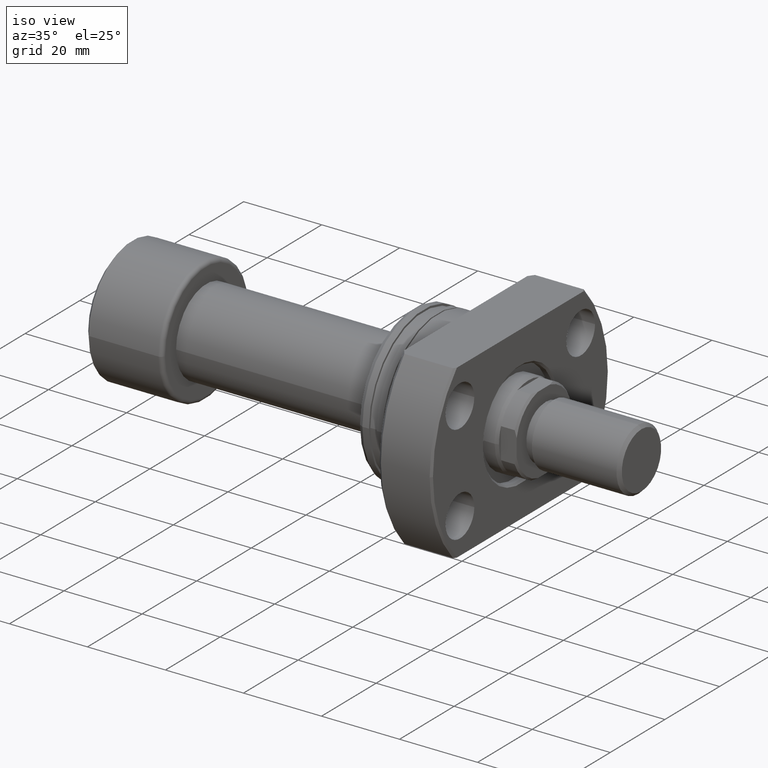
[diagram: clean part render]
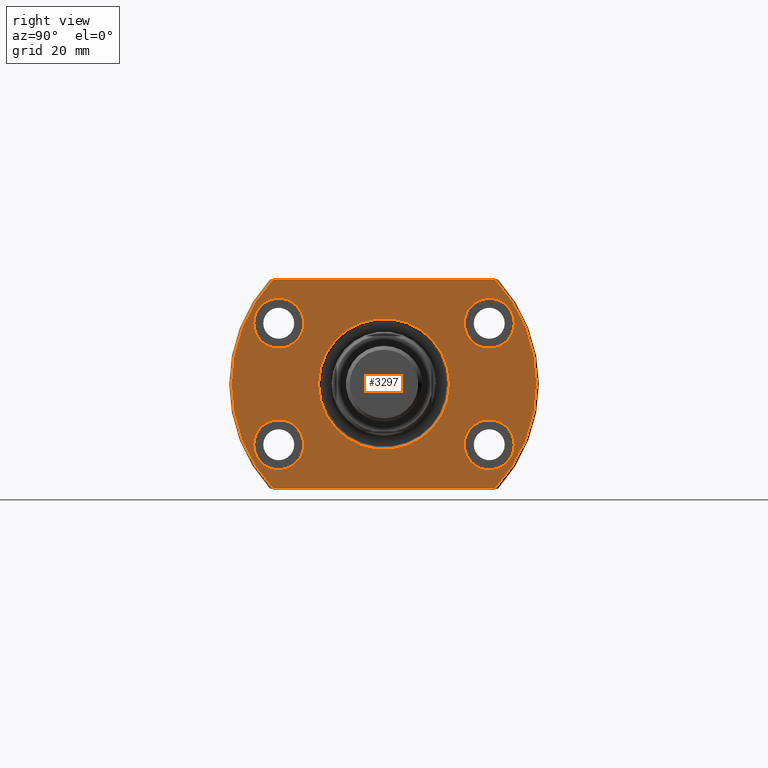
[diagram: tour spotlight — one face highlighted and labeled with its STEP entity id]
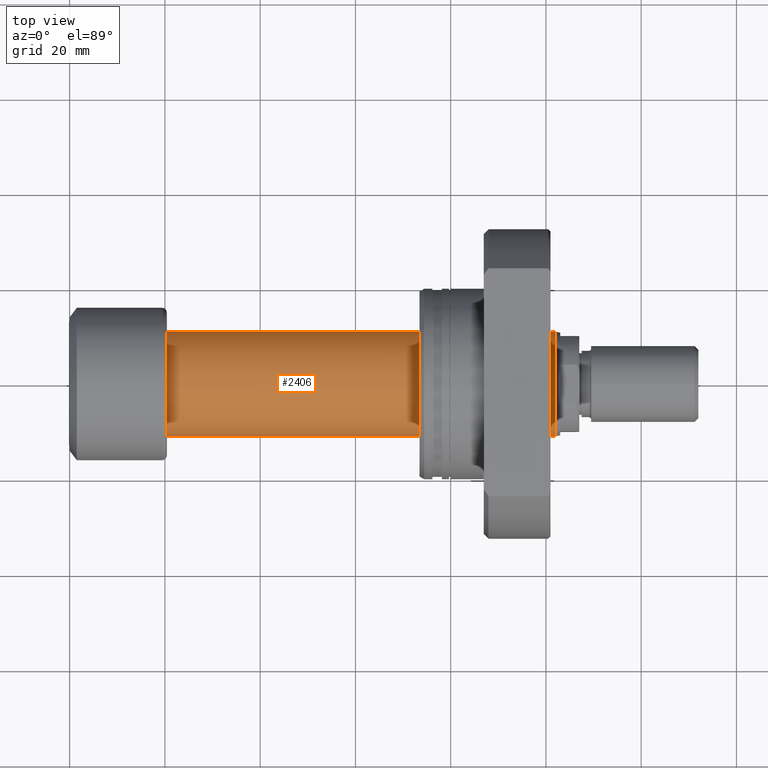
[diagram: tour spotlight — one face highlighted and labeled with its STEP entity id]
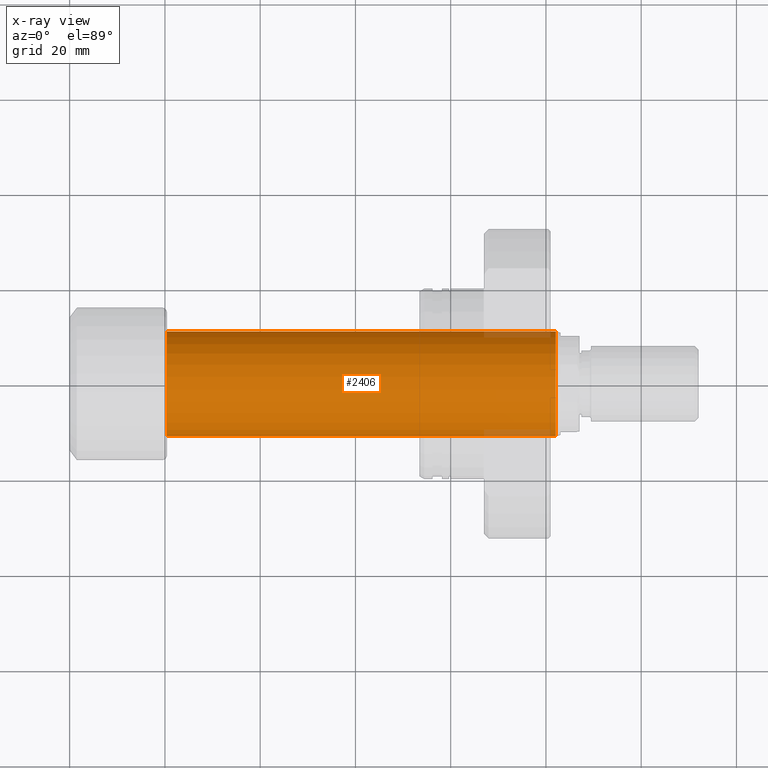
[diagram: x-ray of the same camera — body ghosted, this tour face saturated]
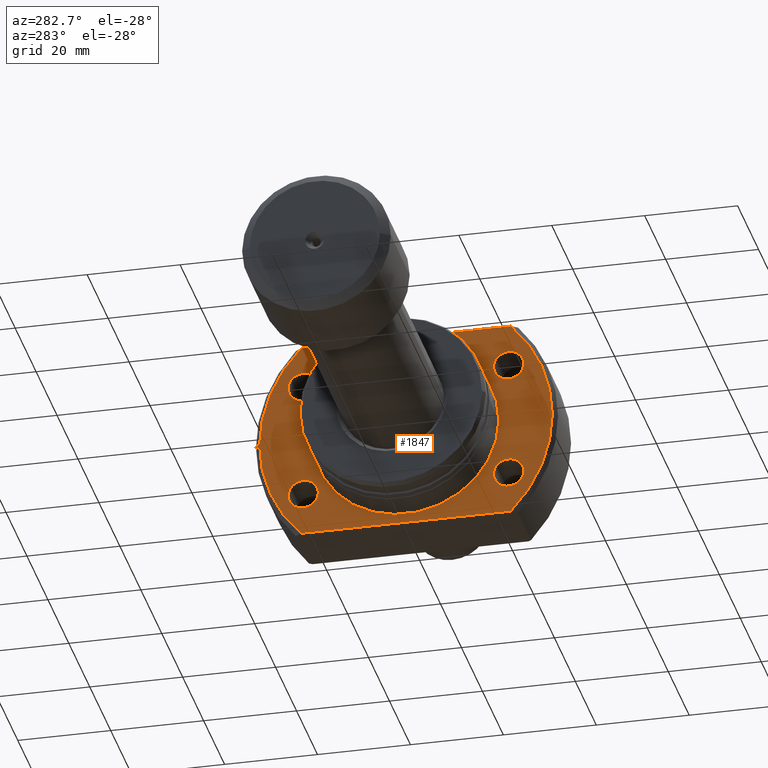
[diagram: tour spotlight — one face highlighted and labeled with its STEP entity id]
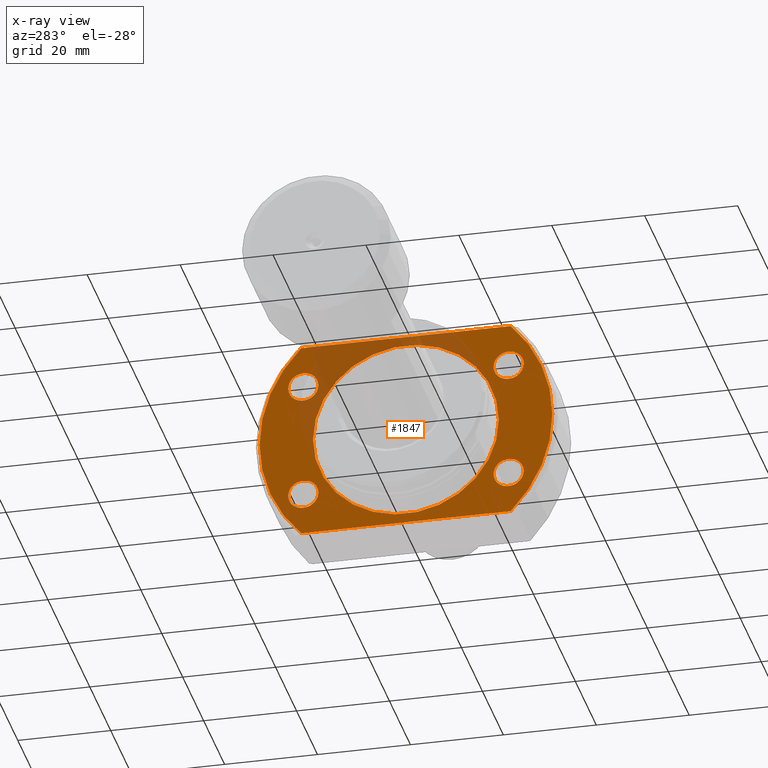
[diagram: x-ray of the same camera — body ghosted, this tour face saturated]
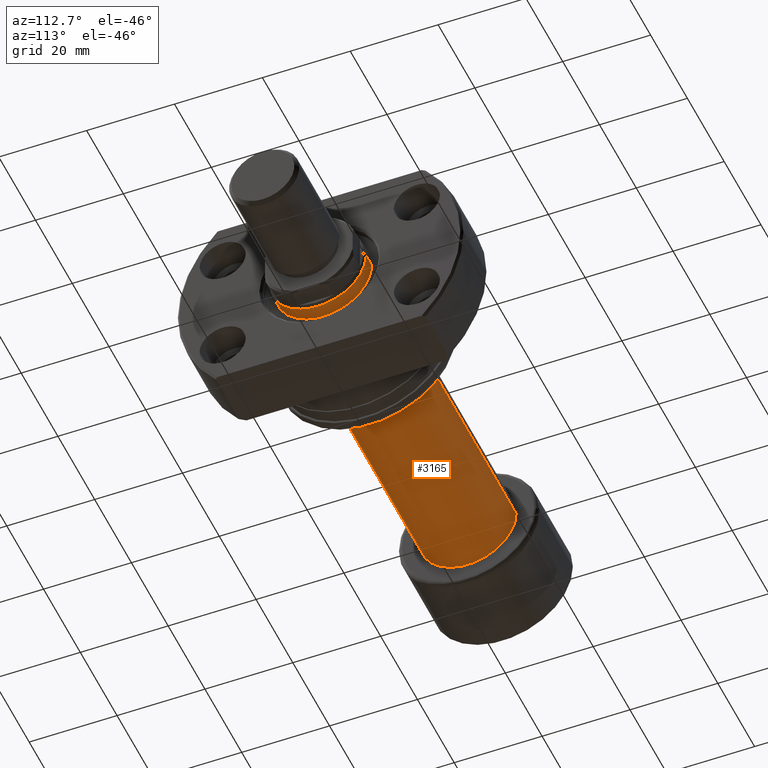
[diagram: tour spotlight — one face highlighted and labeled with its STEP entity id]
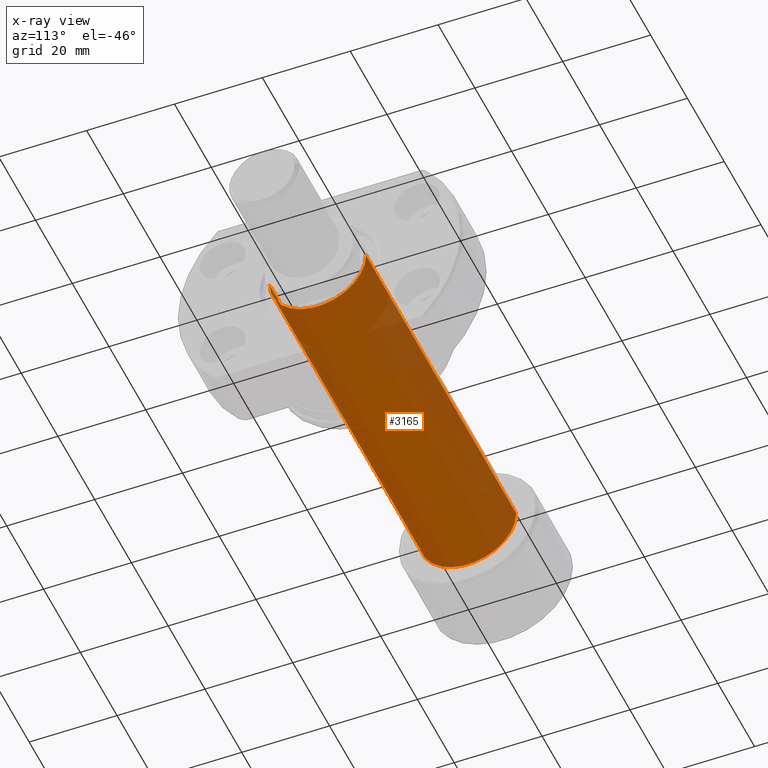
[diagram: x-ray of the same camera — body ghosted, this tour face saturated]
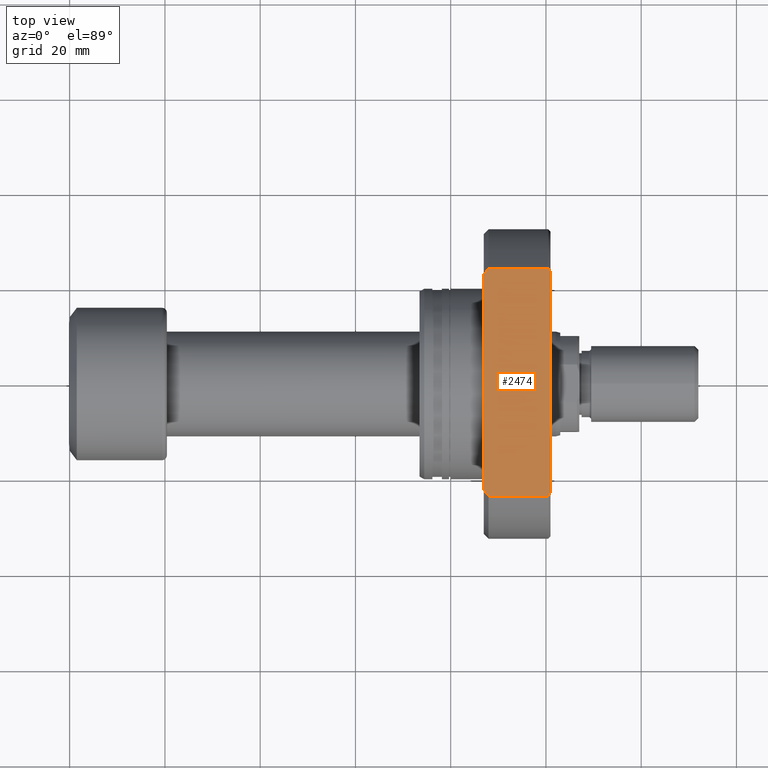
[diagram: tour spotlight — one face highlighted and labeled with its STEP entity id]
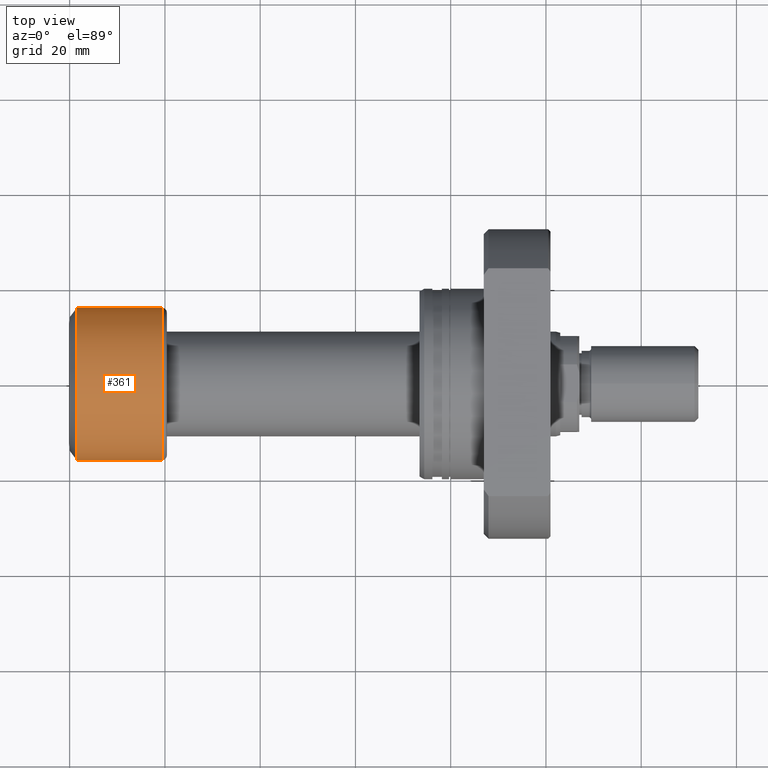
[diagram: tour spotlight — one face highlighted and labeled with its STEP entity id]
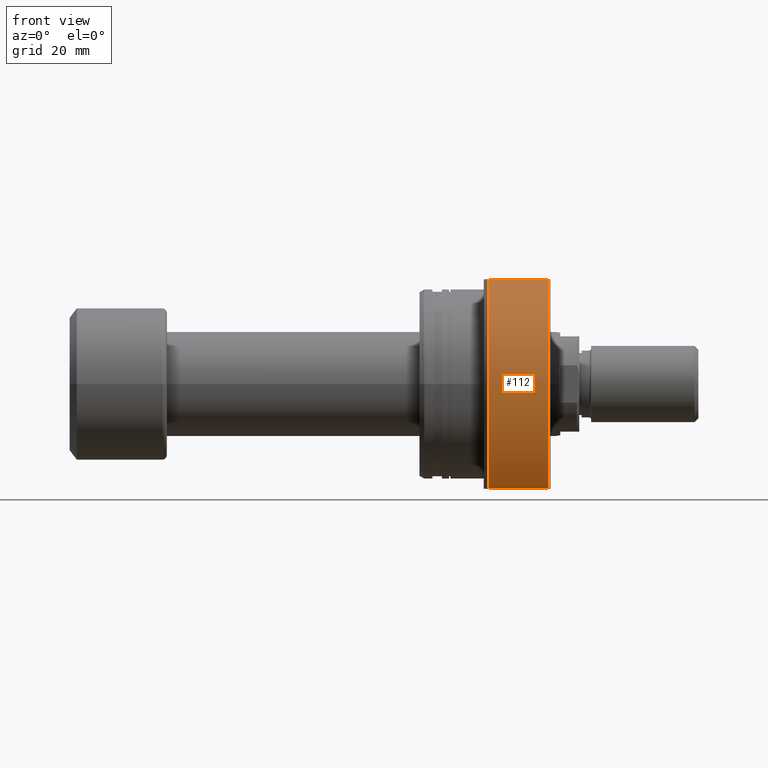
[diagram: tour spotlight — one face highlighted and labeled with its STEP entity id]
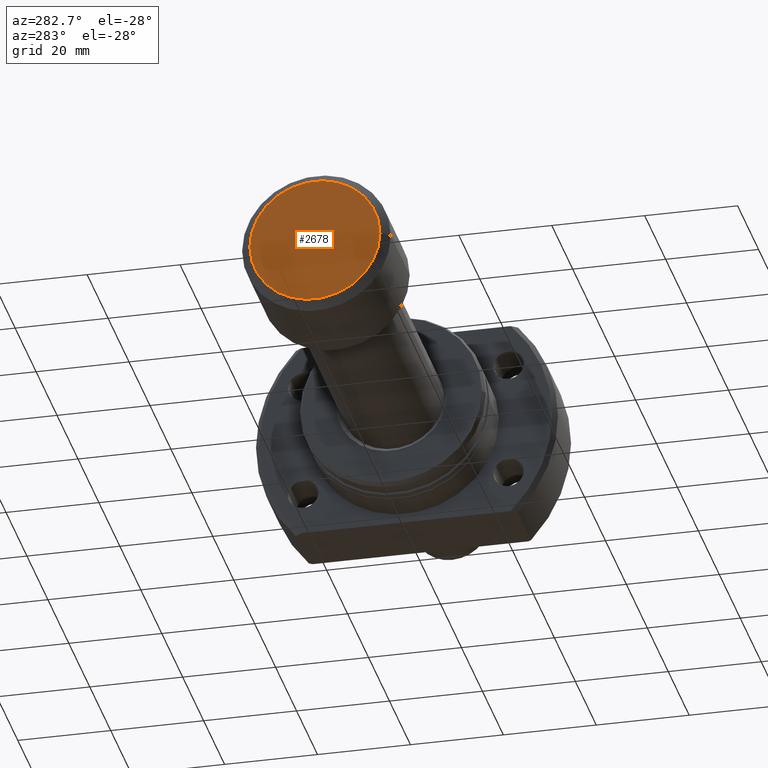
[diagram: tour spotlight — one face highlighted and labeled with its STEP entity id]
A machine part: a face-by-face anatomy tour. The part has 117 B-rep faces; the first image is the clean iso view, then the 8 largest visible faces are spotlighted one at a time (largest first), each with its STEP entity span.

Face 1 — right view, entity #3297. In plain terms, the highlighted planar face has unit normal (-1, -0, 0).
Definition (entity closure, byte-faithful):
#6 = EDGE_CURVE ( 'NONE', #573, #157, #310, .T. ) ;
#28 = CIRCLE ( 'NONE', #2116, 5.250000000000000888 ) ;
#43 = CIRCLE ( 'NONE', #3092, 32.00000000000000000 ) ;
#58 = ORIENTED_EDGE ( 'NONE', *, *, #1616, .F. ) ;
#82 = EDGE_LOOP ( 'NONE', ( #1561, #3218 ) ) ;
#136 = FACE_BOUND ( 'NONE', #82, .T. ) ;
#157 = VERTEX_POINT ( 'NONE', #3033 ) ;
#164 = VERTEX_POINT ( 'NONE', #396 ) ;
#220 = AXIS2_PLACEMENT_3D ( 'NONE', #1685, #1401, #1141 ) ;
#235 = DIRECTION ( 'NONE',  ( -1.000000000000000000, -1.335978326342566810E-17, 0.000000000000000000 ) ) ;
#260 = EDGE_CURVE ( 'NONE', #2886, #164, #3543, .T. ) ;
#289 = VERTEX_POINT ( 'NONE', #1810 ) ;
#300 = CARTESIAN_POINT ( 'NONE',  ( 27.50000000000064304, 22.09999999999920917, 12.74999999999999822 ) ) ;
#310 = LINE ( 'NONE', #1963, #2657 ) ;
#315 = EDGE_LOOP ( 'NONE', ( #3351, #2999 ) ) ;
#327 = AXIS2_PLACEMENT_3D ( 'NONE', #948, #2395, #3535 ) ;
#335 = CARTESIAN_POINT ( 'NONE',  ( 27.49999999999921130, -27.35000000000079368, 12.74999999999999822 ) ) ;
#359 = DIRECTION ( 'NONE',  ( 0.000000000000000000, 1.000000000000000000, 0.000000000000000000 ) ) ;
#396 = CARTESIAN_POINT ( 'NONE',  ( 27.50000000000079581, 27.34999999999921272, 12.74999999999999822 ) ) ;
#442 = CARTESIAN_POINT ( 'NONE',  ( 27.50000000000000355, -32.00000000000000000, 0.000000000000000000 ) ) ;
#480 = VERTEX_POINT ( 'NONE', #1435 ) ;
#513 = DIRECTION ( 'NONE',  ( -1.000000000000000000, -1.335978326342566810E-17, 0.000000000000000000 ) ) ;
#515 = CIRCLE ( 'NONE', #327, 32.00000000000000000 ) ;
#573 = VERTEX_POINT ( 'NONE', #2895 ) ;
#608 = DIRECTION ( 'NONE',  ( 1.000000000000000000, 1.335978326342566810E-17, -0.000000000000000000 ) ) ;
#624 = EDGE_LOOP ( 'NONE', ( #2667, #1424 ) ) ;
#668 = CARTESIAN_POINT ( 'NONE',  ( 27.50000000000049027, 16.84999999999920917, 12.74999999999999822 ) ) ;
#677 = DIRECTION ( 'NONE',  ( -0.000000000000000000, 1.000000000000000000, 0.000000000000000000 ) ) ;
#697 = DIRECTION ( 'NONE',  ( 1.000000000000000000, 1.335978326342566810E-17, -0.000000000000000000 ) ) ;
#918 = DIRECTION ( 'NONE',  ( 0.000000000000000000, 1.000000000000000000, 0.000000000000000000 ) ) ;
#927 = EDGE_CURVE ( 'NONE', #1628, #480, #2287, .T. ) ;
#934 = CIRCLE ( 'NONE', #2122, 13.74999999999920774 ) ;
#948 = CARTESIAN_POINT ( 'NONE',  ( 27.50000000000000355, 3.673940397442059375E-16, 0.000000000000000000 ) ) ;
#974 = FACE_BOUND ( 'NONE', #315, .T. ) ;
#993 = DIRECTION ( 'NONE',  ( 1.000000000000000000, -2.886466111666351885E-14, 0.000000000000000000 ) ) ;
#1040 = DIRECTION ( 'NONE',  ( 2.907726969256361977E-14, 1.000000000000000000, 0.000000000000000000 ) ) ;
#1136 = DIRECTION ( 'NONE',  ( -1.335978326342566810E-17, 1.000000000000000000, -0.000000000000000000 ) ) ;
#1141 = DIRECTION ( 'NONE',  ( 2.907726969256361977E-14, 1.000000000000000000, 0.000000000000000000 ) ) ;
#1178 = EDGE_CURVE ( 'NONE', #2060, #573, #515, .T. ) ;
#1200 = FACE_OUTER_BOUND ( 'NONE', #1709, .T. ) ;
#1257 = FACE_BOUND ( 'NONE', #2947, .T. ) ;
#1273 = PLANE ( 'NONE',  #1830 ) ;
#1281 = CIRCLE ( 'NONE', #2898, 5.250000000000000888 ) ;
#1297 = EDGE_CURVE ( 'NONE', #1923, #2024, #934, .T. ) ;
#1392 = CARTESIAN_POINT ( 'NONE',  ( 27.50000000000064304, 22.09999999999920917, -12.75000000000000178 ) ) ;
#1401 = DIRECTION ( 'NONE',  ( 1.000000000000000000, -2.887798767815668620E-14, -6.310887241768094443E-30 ) ) ;
#1424 = ORIENTED_EDGE ( 'NONE', *, *, #260, .F. ) ;
#1435 = CARTESIAN_POINT ( 'NONE',  ( 27.50000000000049027, 16.84999999999920917, -12.75000000000000178 ) ) ;
#1523 = VERTEX_POINT ( 'NONE', #2885 ) ;
#1534 = CIRCLE ( 'NONE', #3561, 32.00000000000000000 ) ;
#1545 = ORIENTED_EDGE ( 'NONE', *, *, #3235, .T. ) ;
#1559 = DIRECTION ( 'NONE',  ( 2.907726969256361977E-14, 1.000000000000000000, 0.000000000000000000 ) ) ;
#1561 = ORIENTED_EDGE ( 'NONE', *, *, #2893, .T. ) ;
#1616 = EDGE_CURVE ( 'NONE', #1766, #2938, #2724, .T. ) ;
#1628 = VERTEX_POINT ( 'NONE', #2080 ) ;
#1637 = DIRECTION ( 'NONE',  ( 0.000000000000000000, -1.000000000000000000, 0.000000000000000000 ) ) ;
#1644 = EDGE_LOOP ( 'NONE', ( #2148, #58 ) ) ;
#1646 = AXIS2_PLACEMENT_3D ( 'NONE', #1392, #2529, #3670 ) ;
#1655 = DIRECTION ( 'NONE',  ( 0.000000000000000000, -1.000000000000000000, 0.000000000000000000 ) ) ;
#1685 = CARTESIAN_POINT ( 'NONE',  ( 27.49999999999936406, -22.10000000000079368, -12.75000000000000178 ) ) ;
#1702 = CIRCLE ( 'NONE', #2536, 5.250000000000000888 ) ;
#1709 = EDGE_LOOP ( 'NONE', ( #1734, #3476, #3472, #3011, #1545 ) ) ;
#1734 = ORIENTED_EDGE ( 'NONE', *, *, #3327, .F. ) ;
#1740 = DIRECTION ( 'NONE',  ( 2.907726969256361977E-14, 1.000000000000000000, 0.000000000000000000 ) ) ;
#1764 = CIRCLE ( 'NONE', #3374, 13.74999999999920774 ) ;
#1766 = VERTEX_POINT ( 'NONE', #1801 ) ;
#1801 = CARTESIAN_POINT ( 'NONE',  ( 27.49999999999921130, -27.35000000000079368, -12.75000000000000178 ) ) ;
#1810 = CARTESIAN_POINT ( 'NONE',  ( 27.50000000000000355, 23.23790007724450035, 22.00000000000000355 ) ) ;
#1826 = CIRCLE ( 'NONE', #220, 5.250000000000000888 ) ;
#1830 = AXIS2_PLACEMENT_3D ( 'NONE', #3221, #3199, #2654 ) ;
#1833 = DIRECTION ( 'NONE',  ( 2.907726969256361977E-14, 1.000000000000000000, 0.000000000000000000 ) ) ;
#1866 = CARTESIAN_POINT ( 'NONE',  ( 27.50000000000064304, 22.09999999999920917, -12.75000000000000178 ) ) ;
#1923 = VERTEX_POINT ( 'NONE', #2937 ) ;
#1938 = AXIS2_PLACEMENT_3D ( 'NONE', #2695, #993, #1833 ) ;
#1963 = CARTESIAN_POINT ( 'NONE',  ( 27.50000000000000355, -32.00000000000000000, -22.00000000000000355 ) ) ;
#1983 = VERTEX_POINT ( 'NONE', #335 ) ;
#2016 = CARTESIAN_POINT ( 'NONE',  ( 27.50000000000000355, 13.74999999999850075, 0.000000000000000000 ) ) ;
#2024 = VERTEX_POINT ( 'NONE', #2016 ) ;
#2060 = VERTEX_POINT ( 'NONE', #442 ) ;
#2080 = CARTESIAN_POINT ( 'NONE',  ( 27.50000000000079581, 27.34999999999921272, -12.75000000000000178 ) ) ;
#2096 = LINE ( 'NONE', #3233, #2912 ) ;
#2110 = CARTESIAN_POINT ( 'NONE',  ( 27.50000000000000355, 3.673940397442059375E-16, 0.000000000000000000 ) ) ;
#2116 = AXIS2_PLACEMENT_3D ( 'NONE', #300, #3492, #1740 ) ;
#2122 = AXIS2_PLACEMENT_3D ( 'NONE', #2799, #235, #1637 ) ;
#2148 = ORIENTED_EDGE ( 'NONE', *, *, #3122, .F. ) ;
#2175 = DIRECTION ( 'NONE',  ( 1.000000000000000000, -2.887798767815668620E-14, -6.310887241768094443E-30 ) ) ;
#2287 = CIRCLE ( 'NONE', #1646, 5.250000000000000888 ) ;
#2315 = EDGE_CURVE ( 'NONE', #164, #2886, #28, .T. ) ;
#2373 = FACE_BOUND ( 'NONE', #1644, .T. ) ;
#2395 = DIRECTION ( 'NONE',  ( 1.000000000000000000, 1.335978326342566810E-17, -0.000000000000000000 ) ) ;
#2431 = EDGE_CURVE ( 'NONE', #3531, #1983, #1281, .T. ) ;
#2442 = CARTESIAN_POINT ( 'NONE',  ( 27.49999999999936406, -22.10000000000079368, 12.74999999999999822 ) ) ;
#2449 = CARTESIAN_POINT ( 'NONE',  ( 27.49999999999951683, -16.85000000000079012, -12.75000000000000178 ) ) ;
#2455 = EDGE_CURVE ( 'NONE', #480, #1628, #1702, .T. ) ;
#2478 = DIRECTION ( 'NONE',  ( 2.907726969256361977E-14, 1.000000000000000000, 0.000000000000000000 ) ) ;
#2529 = DIRECTION ( 'NONE',  ( 1.000000000000000000, -2.887798767815668620E-14, -6.310887241768094443E-30 ) ) ;
#2536 = AXIS2_PLACEMENT_3D ( 'NONE', #1866, #2175, #2478 ) ;
#2575 = CARTESIAN_POINT ( 'NONE',  ( 27.49999999999951683, -16.85000000000079012, 12.74999999999999822 ) ) ;
#2654 = DIRECTION ( 'NONE',  ( 1.335978326342566810E-17, -1.000000000000000000, 0.000000000000000000 ) ) ;
#2657 = VECTOR ( 'NONE', #1136, 1000.000000000000000 ) ;
#2667 = ORIENTED_EDGE ( 'NONE', *, *, #2315, .F. ) ;
#2695 = CARTESIAN_POINT ( 'NONE',  ( 27.50000000000064304, 22.09999999999920917, 12.74999999999999822 ) ) ;
#2724 = CIRCLE ( 'NONE', #3496, 5.250000000000000888 ) ;
#2799 = CARTESIAN_POINT ( 'NONE',  ( 27.50000000000000355, -7.068290497865035784E-13, 0.000000000000000000 ) ) ;
#2885 = CARTESIAN_POINT ( 'NONE',  ( 27.50000000000000355, -23.23790007724450035, 22.00000000000000355 ) ) ;
#2886 = VERTEX_POINT ( 'NONE', #668 ) ;
#2893 = EDGE_CURVE ( 'NONE', #2024, #1923, #1764, .T. ) ;
#2895 = CARTESIAN_POINT ( 'NONE',  ( 27.50000000000000355, -23.23790007724450035, -22.00000000000000355 ) ) ;
#2898 = AXIS2_PLACEMENT_3D ( 'NONE', #2442, #3599, #1040 ) ;
#2912 = VECTOR ( 'NONE', #677, 1000.000000000000000 ) ;
#2928 = FACE_BOUND ( 'NONE', #624, .T. ) ;
#2937 = CARTESIAN_POINT ( 'NONE',  ( 27.50000000000000355, -13.75000000000070699, 1.683889348827610851E-15 ) ) ;
#2938 = VERTEX_POINT ( 'NONE', #2449 ) ;
#2946 = DIRECTION ( 'NONE',  ( 1.000000000000000000, -2.887798767815668620E-14, -6.310887241768094443E-30 ) ) ;
#2947 = EDGE_LOOP ( 'NONE', ( #3634, #3519 ) ) ;
#2980 = DIRECTION ( 'NONE',  ( 2.907726969256361977E-14, 1.000000000000000000, 0.000000000000000000 ) ) ;
#2999 = ORIENTED_EDGE ( 'NONE', *, *, #2455, .F. ) ;
#3011 = ORIENTED_EDGE ( 'NONE', *, *, #6, .T. ) ;
#3033 = CARTESIAN_POINT ( 'NONE',  ( 27.50000000000000355, 23.23790007724450035, -22.00000000000000355 ) ) ;
#3055 = CARTESIAN_POINT ( 'NONE',  ( 27.50000000000000355, -7.068290497865035784E-13, 0.000000000000000000 ) ) ;
#3092 = AXIS2_PLACEMENT_3D ( 'NONE', #3163, #608, #359 ) ;
#3122 = EDGE_CURVE ( 'NONE', #2938, #1766, #1826, .T. ) ;
#3142 = CIRCLE ( 'NONE', #3616, 5.250000000000000888 ) ;
#3163 = CARTESIAN_POINT ( 'NONE',  ( 27.50000000000000355, 3.673940397442059375E-16, 0.000000000000000000 ) ) ;
#3169 = EDGE_CURVE ( 'NONE', #1523, #2060, #43, .T. ) ;
#3199 = DIRECTION ( 'NONE',  ( -1.000000000000000000, -1.335978326342566810E-17, 0.000000000000000000 ) ) ;
#3205 = CARTESIAN_POINT ( 'NONE',  ( 27.49999999999936406, -22.10000000000079368, -12.75000000000000178 ) ) ;
#3218 = ORIENTED_EDGE ( 'NONE', *, *, #1297, .T. ) ;
#3221 = CARTESIAN_POINT ( 'NONE',  ( 27.50000000000000355, -32.00000000000000000, 0.000000000000000000 ) ) ;
#3233 = CARTESIAN_POINT ( 'NONE',  ( 27.50000000000000355, 23.92174742781206831, 22.00000000000000355 ) ) ;
#3235 = EDGE_CURVE ( 'NONE', #157, #289, #1534, .T. ) ;
#3282 = EDGE_CURVE ( 'NONE', #1983, #3531, #3142, .T. ) ;
#3297 = ADVANCED_FACE ( 'NONE', ( #136, #2928, #1257, #2373, #974, #1200 ), #1273, .F. ) ;
#3327 = EDGE_CURVE ( 'NONE', #1523, #289, #2096, .T. ) ;
#3351 = ORIENTED_EDGE ( 'NONE', *, *, #927, .F. ) ;
#3374 = AXIS2_PLACEMENT_3D ( 'NONE', #3055, #513, #1655 ) ;
#3472 = ORIENTED_EDGE ( 'NONE', *, *, #1178, .T. ) ;
#3476 = ORIENTED_EDGE ( 'NONE', *, *, #3169, .T. ) ;
#3492 = DIRECTION ( 'NONE',  ( 1.000000000000000000, -2.886466111666351885E-14, 0.000000000000000000 ) ) ;
#3493 = DIRECTION ( 'NONE',  ( 1.000000000000000000, -2.887798767815668620E-14, -6.310887241768094443E-30 ) ) ;
#3496 = AXIS2_PLACEMENT_3D ( 'NONE', #3205, #2946, #1559 ) ;
#3519 = ORIENTED_EDGE ( 'NONE', *, *, #3282, .F. ) ;
#3531 = VERTEX_POINT ( 'NONE', #2575 ) ;
#3535 = DIRECTION ( 'NONE',  ( 0.000000000000000000, 1.000000000000000000, 0.000000000000000000 ) ) ;
#3543 = CIRCLE ( 'NONE', #1938, 5.250000000000000888 ) ;
#3546 = CARTESIAN_POINT ( 'NONE',  ( 27.49999999999936406, -22.10000000000079368, 12.74999999999999822 ) ) ;
#3561 = AXIS2_PLACEMENT_3D ( 'NONE', #2110, #697, #918 ) ;
#3599 = DIRECTION ( 'NONE',  ( 1.000000000000000000, -2.887798767815668620E-14, -6.310887241768094443E-30 ) ) ;
#3616 = AXIS2_PLACEMENT_3D ( 'NONE', #3546, #3493, #2980 ) ;
#3634 = ORIENTED_EDGE ( 'NONE', *, *, #2431, .F. ) ;
#3670 = DIRECTION ( 'NONE',  ( 2.907726969256361977E-14, 1.000000000000000000, 0.000000000000000000 ) ) ;

Face 2 — top view, entity #2406. An x-ray twin of the same camera follows (body ghosted, this face saturated) — the face is partly hidden behind the body. In plain terms, the highlighted cylindrical surface (partial cylindrical patch) has radius 11 mm, axis along (-1, -0, -0).
Definition (entity closure, byte-faithful):
#170 = CARTESIAN_POINT ( 'NONE',  ( 102.0667575123237754, 1.091647168357910311E-15, 0.000000000000000000 ) ) ;
#203 = LINE ( 'NONE', #488, #1347 ) ;
#488 = CARTESIAN_POINT ( 'NONE',  ( -1.176496554275982688E-16, 11.00000000000009592, 1.347111479062100435E-15 ) ) ;
#492 = ORIENTED_EDGE ( 'NONE', *, *, #2220, .T. ) ;
#601 = ORIENTED_EDGE ( 'NONE', *, *, #903, .F. ) ;
#638 = CARTESIAN_POINT ( 'NONE',  ( 1.176496554275982688E-16, -11.00000000000009592, 0.000000000000000000 ) ) ;
#688 = AXIS2_PLACEMENT_3D ( 'NONE', #170, #969, #3027 ) ;
#787 = VERTEX_POINT ( 'NONE', #1280 ) ;
#903 = EDGE_CURVE ( 'NONE', #2207, #787, #2716, .T. ) ;
#969 = DIRECTION ( 'NONE',  ( -1.000000000000000000, -1.069542322069065801E-17, -0.000000000000000000 ) ) ;
#1097 = DIRECTION ( 'NONE',  ( -1.000000000000000000, -1.069542322069065801E-17, -0.000000000000000000 ) ) ;
#1203 = ORIENTED_EDGE ( 'NONE', *, *, #2223, .T. ) ;
#1280 = CARTESIAN_POINT ( 'NONE',  ( 20.39999999999999503, 11.00000000000000000, 1.347111479062094321E-15 ) ) ;
#1284 = AXIS2_PLACEMENT_3D ( 'NONE', #3355, #1097, #3637 ) ;
#1347 = VECTOR ( 'NONE', #1624, 1000.000000000000000 ) ;
#1624 = DIRECTION ( 'NONE',  ( -1.000000000000000000, -1.069542322069065801E-17, -0.000000000000000000 ) ) ;
#1696 = CIRCLE ( 'NONE', #688, 11.00000000000019185 ) ;
#1781 = CARTESIAN_POINT ( 'NONE',  ( 0.000000000000000000, 0.000000000000000000, 0.000000000000000000 ) ) ;
#2041 = EDGE_CURVE ( 'NONE', #2535, #2207, #2341, .T. ) ;
#2051 = FACE_OUTER_BOUND ( 'NONE', #3403, .T. ) ;
#2162 = CARTESIAN_POINT ( 'NONE',  ( 102.0667575123237754, -11.00000000000019007, 0.000000000000000000 ) ) ;
#2207 = VERTEX_POINT ( 'NONE', #2726 ) ;
#2220 = EDGE_CURVE ( 'NONE', #2535, #3501, #1696, .T. ) ;
#2223 = EDGE_CURVE ( 'NONE', #3501, #787, #203, .T. ) ;
#2283 = CARTESIAN_POINT ( 'NONE',  ( 102.0667575123237754, 11.00000000000019362, 1.347111479062112268E-15 ) ) ;
#2319 = ORIENTED_EDGE ( 'NONE', *, *, #2041, .F. ) ;
#2341 = LINE ( 'NONE', #638, #3440 ) ;
#2406 = ADVANCED_FACE ( 'NONE', ( #2051 ), #3458, .T. ) ;
#2535 = VERTEX_POINT ( 'NONE', #2162 ) ;
#2705 = DIRECTION ( 'NONE',  ( 1.069542322069065801E-17, -1.000000000000000000, 0.000000000000000000 ) ) ;
#2716 = CIRCLE ( 'NONE', #1284, 11.00000000000000000 ) ;
#2726 = CARTESIAN_POINT ( 'NONE',  ( 20.39999999999999503, -11.00000000000000000, 0.000000000000000000 ) ) ;
#2957 = AXIS2_PLACEMENT_3D ( 'NONE', #1781, #2992, #2705 ) ;
#2992 = DIRECTION ( 'NONE',  ( -1.000000000000000000, -1.069542322069065801E-17, -0.000000000000000000 ) ) ;
#3027 = DIRECTION ( 'NONE',  ( 0.000000000000000000, -1.000000000000000000, 0.000000000000000000 ) ) ;
#3355 = CARTESIAN_POINT ( 'NONE',  ( 20.39999999999999503, 2.181866337020893623E-16, 0.000000000000000000 ) ) ;
#3403 = EDGE_LOOP ( 'NONE', ( #492, #1203, #601, #2319 ) ) ;
#3440 = VECTOR ( 'NONE', #3486, 1000.000000000000000 ) ;
#3458 = CYLINDRICAL_SURFACE ( 'NONE', #2957, 11.00000000000009592 ) ;
#3486 = DIRECTION ( 'NONE',  ( -1.000000000000000000, -1.069542322069065801E-17, -0.000000000000000000 ) ) ;
#3501 = VERTEX_POINT ( 'NONE', #2283 ) ;
#3637 = DIRECTION ( 'NONE',  ( 0.000000000000000000, -1.000000000000000000, 0.000000000000000000 ) ) ;

Face 3 — auxiliary view, entity #1847. An x-ray twin of the same camera follows (body ghosted, this face saturated) — the face is partly hidden behind the body. In plain terms, the highlighted planar face has unit normal (1, 0, 0).
Definition (entity closure, byte-faithful):
#4 = DIRECTION ( 'NONE',  ( 1.000000000000000000, 1.335978326342566810E-17, -0.000000000000000000 ) ) ;
#9 = CARTESIAN_POINT ( 'NONE',  ( 13.50000000000000355, 19.99999999999999645, 0.000000000000000000 ) ) ;
#18 = EDGE_CURVE ( 'NONE', #1604, #3344, #213, .T. ) ;
#26 = CARTESIAN_POINT ( 'NONE',  ( 13.50000000000000178, 1.803570740562465225E-16, 0.000000000000000000 ) ) ;
#120 = ORIENTED_EDGE ( 'NONE', *, *, #3101, .F. ) ;
#155 = AXIS2_PLACEMENT_3D ( 'NONE', #3618, #2513, #487 ) ;
#209 = CARTESIAN_POINT ( 'NONE',  ( 13.50000000000000178, -19.99999999999999645, 0.000000000000000000 ) ) ;
#213 = CIRCLE ( 'NONE', #391, 3.249999999999999556 ) ;
#216 = CIRCLE ( 'NONE', #1466, 3.249999999999999556 ) ;
#241 = EDGE_CURVE ( 'NONE', #2899, #2876, #1027, .T. ) ;
#266 = VECTOR ( 'NONE', #1555, 1000.000000000000000 ) ;
#391 = AXIS2_PLACEMENT_3D ( 'NONE', #3174, #1449, #3396 ) ;
#419 = VERTEX_POINT ( 'NONE', #1383 ) ;
#427 = CARTESIAN_POINT ( 'NONE',  ( 13.50000000000000355, 1.803570740562465471E-16, 0.000000000000000000 ) ) ;
#458 = PLANE ( 'NONE',  #754 ) ;
#464 = CARTESIAN_POINT ( 'NONE',  ( 13.50000000000000178, 1.803570740562465225E-16, 0.000000000000000000 ) ) ;
#487 = DIRECTION ( 'NONE',  ( 0.000000000000000000, 1.000000000000000000, 0.000000000000000000 ) ) ;
#498 = EDGE_CURVE ( 'NONE', #2694, #1497, #1885, .T. ) ;
#522 = EDGE_CURVE ( 'NONE', #3099, #2876, #695, .T. ) ;
#525 = CIRCLE ( 'NONE', #820, 3.249999999999999556 ) ;
#546 = CIRCLE ( 'NONE', #1970, 19.99999999999999645 ) ;
#555 = DIRECTION ( 'NONE',  ( 1.000000000000000000, 1.335978326342566810E-17, -0.000000000000000000 ) ) ;
#558 = CARTESIAN_POINT ( 'NONE',  ( 13.50000000000000178, 25.34999999999961418, 12.74999999999999822 ) ) ;
#584 = DIRECTION ( 'NONE',  ( 1.000000000000000000, 1.335978326342566810E-17, -0.000000000000000000 ) ) ;
#695 = CIRCLE ( 'NONE', #1703, 31.49999999999993250 ) ;
#734 = ORIENTED_EDGE ( 'NONE', *, *, #1597, .T. ) ;
#754 = AXIS2_PLACEMENT_3D ( 'NONE', #209, #1354, #3038 ) ;
#765 = CARTESIAN_POINT ( 'NONE',  ( 13.50000000000000178, 31.49999999999993250, 0.000000000000000000 ) ) ;
#775 = EDGE_CURVE ( 'NONE', #3294, #2601, #546, .T. ) ;
#786 = EDGE_LOOP ( 'NONE', ( #3126, #1692 ) ) ;
#794 = ORIENTED_EDGE ( 'NONE', *, *, #3277, .T. ) ;
#820 = AXIS2_PLACEMENT_3D ( 'NONE', #1216, #2346, #2681 ) ;
#832 = CARTESIAN_POINT ( 'NONE',  ( 13.50000000000000178, 22.09999999999961773, -12.75000000000000178 ) ) ;
#857 = EDGE_CURVE ( 'NONE', #3344, #1604, #3131, .T. ) ;
#875 = VERTEX_POINT ( 'NONE', #765 ) ;
#887 = ORIENTED_EDGE ( 'NONE', *, *, #522, .F. ) ;
#901 = LINE ( 'NONE', #1483, #1353 ) ;
#962 = ORIENTED_EDGE ( 'NONE', *, *, #857, .T. ) ;
#1002 = ORIENTED_EDGE ( 'NONE', *, *, #18, .T. ) ;
#1027 = LINE ( 'NONE', #2107, #266 ) ;
#1093 = VERTEX_POINT ( 'NONE', #3171 ) ;
#1094 = CARTESIAN_POINT ( 'NONE',  ( 13.50000000000000178, -18.85000000000038867, -12.75000000000000178 ) ) ;
#1215 = DIRECTION ( 'NONE',  ( 1.000000000000000000, 1.335978326342566810E-17, -0.000000000000000000 ) ) ;
#1216 = CARTESIAN_POINT ( 'NONE',  ( 13.50000000000000178, 22.09999999999961773, -12.75000000000000178 ) ) ;
#1221 = ORIENTED_EDGE ( 'NONE', *, *, #2361, .T. ) ;
#1298 = EDGE_CURVE ( 'NONE', #875, #419, #3023, .T. ) ;
#1315 = VERTEX_POINT ( 'NONE', #1094 ) ;
#1353 = VECTOR ( 'NONE', #2560, 1000.000000000000000 ) ;
#1354 = DIRECTION ( 'NONE',  ( 1.000000000000000000, 1.335978326342566810E-17, -0.000000000000000000 ) ) ;
#1383 = CARTESIAN_POINT ( 'NONE',  ( 13.50000000000000178, 22.54440063519089676, 22.00000000000000355 ) ) ;
#1396 = ORIENTED_EDGE ( 'NONE', *, *, #498, .T. ) ;
#1409 = AXIS2_PLACEMENT_3D ( 'NONE', #1557, #2696, #2620 ) ;
#1449 = DIRECTION ( 'NONE',  ( 1.000000000000000000, 1.335978326342566810E-17, -0.000000000000000000 ) ) ;
#1461 = CIRCLE ( 'NONE', #3547, 3.249999999999999556 ) ;
#1466 = AXIS2_PLACEMENT_3D ( 'NONE', #3463, #4, #2867 ) ;
#1469 = CIRCLE ( 'NONE', #3200, 31.49999999999993250 ) ;
#1470 = DIRECTION ( 'NONE',  ( 0.000000000000000000, 1.000000000000000000, 0.000000000000000000 ) ) ;
#1483 = CARTESIAN_POINT ( 'NONE',  ( 13.50000000000000178, -19.99999999999999645, 22.00000000000000355 ) ) ;
#1497 = VERTEX_POINT ( 'NONE', #3125 ) ;
#1518 = CARTESIAN_POINT ( 'NONE',  ( 13.50000000000000178, -22.10000000000038511, -12.75000000000000178 ) ) ;
#1520 = EDGE_CURVE ( 'NONE', #1093, #2391, #2542, .T. ) ;
#1547 = EDGE_CURVE ( 'NONE', #1497, #2694, #216, .T. ) ;
#1555 = DIRECTION ( 'NONE',  ( 1.335978326342566810E-17, -1.000000000000000000, 0.000000000000000000 ) ) ;
#1557 = CARTESIAN_POINT ( 'NONE',  ( 13.50000000000000355, 1.803570740562465471E-16, 0.000000000000000000 ) ) ;
#1566 = DIRECTION ( 'NONE',  ( 0.000000000000000000, 1.000000000000000000, 0.000000000000000000 ) ) ;
#1597 = EDGE_CURVE ( 'NONE', #2931, #1315, #1770, .T. ) ;
#1604 = VERTEX_POINT ( 'NONE', #2713 ) ;
#1692 = ORIENTED_EDGE ( 'NONE', *, *, #775, .T. ) ;
#1703 = AXIS2_PLACEMENT_3D ( 'NONE', #2015, #3469, #2281 ) ;
#1770 = CIRCLE ( 'NONE', #3258, 3.249999999999999556 ) ;
#1796 = CARTESIAN_POINT ( 'NONE',  ( 13.50000000000000178, 18.84999999999961773, -12.75000000000000178 ) ) ;
#1847 = ADVANCED_FACE ( 'NONE', ( #2167, #3630, #3054, #1927, #3305, #3012 ), #458, .F. ) ;
#1852 = ORIENTED_EDGE ( 'NONE', *, *, #1520, .T. ) ;
#1885 = CIRCLE ( 'NONE', #3314, 3.249999999999999556 ) ;
#1927 = FACE_BOUND ( 'NONE', #2651, .T. ) ;
#1932 = EDGE_LOOP ( 'NONE', ( #1396, #2094 ) ) ;
#1970 = AXIS2_PLACEMENT_3D ( 'NONE', #427, #2145, #1566 ) ;
#2015 = CARTESIAN_POINT ( 'NONE',  ( 13.50000000000000178, 1.803570740562465225E-16, 0.000000000000000000 ) ) ;
#2044 = CARTESIAN_POINT ( 'NONE',  ( 13.50000000000001421, -22.54440063519093940, -22.00000000000000355 ) ) ;
#2078 = CARTESIAN_POINT ( 'NONE',  ( 13.50000000000000355, -19.99999999999999645, 2.449293598294706119E-15 ) ) ;
#2094 = ORIENTED_EDGE ( 'NONE', *, *, #1547, .T. ) ;
#2095 = DIRECTION ( 'NONE',  ( 0.000000000000000000, 1.000000000000000000, 0.000000000000000000 ) ) ;
#2107 = CARTESIAN_POINT ( 'NONE',  ( 13.50000000000000178, -19.99999999999999645, -22.00000000000000355 ) ) ;
#2145 = DIRECTION ( 'NONE',  ( 1.000000000000000000, 1.335978326342566810E-17, -0.000000000000000000 ) ) ;
#2167 = FACE_BOUND ( 'NONE', #1932, .T. ) ;
#2206 = CARTESIAN_POINT ( 'NONE',  ( 13.50000000000000178, 22.54440063519089676, -22.00000000000000355 ) ) ;
#2215 = EDGE_LOOP ( 'NONE', ( #962, #1002 ) ) ;
#2274 = DIRECTION ( 'NONE',  ( 0.000000000000000000, 1.000000000000000000, 0.000000000000000000 ) ) ;
#2281 = DIRECTION ( 'NONE',  ( 0.000000000000000000, 1.000000000000000000, 0.000000000000000000 ) ) ;
#2288 = EDGE_LOOP ( 'NONE', ( #1221, #734 ) ) ;
#2346 = DIRECTION ( 'NONE',  ( 1.000000000000000000, 1.335978326342566810E-17, -0.000000000000000000 ) ) ;
#2360 = DIRECTION ( 'NONE',  ( 1.000000000000000000, 1.335978326342566810E-17, -0.000000000000000000 ) ) ;
#2361 = EDGE_CURVE ( 'NONE', #1315, #2931, #1461, .T. ) ;
#2389 = CARTESIAN_POINT ( 'NONE',  ( 13.50000000000000178, -18.85000000000038867, 12.74999999999999822 ) ) ;
#2391 = VERTEX_POINT ( 'NONE', #1796 ) ;
#2408 = DIRECTION ( 'NONE',  ( 1.000000000000000000, 1.335978326342566810E-17, -0.000000000000000000 ) ) ;
#2479 = AXIS2_PLACEMENT_3D ( 'NONE', #832, #555, #2274 ) ;
#2511 = DIRECTION ( 'NONE',  ( 0.000000000000000000, 1.000000000000000000, 0.000000000000000000 ) ) ;
#2513 = DIRECTION ( 'NONE',  ( 1.000000000000000000, 1.335978326342566810E-17, -0.000000000000000000 ) ) ;
#2542 = CIRCLE ( 'NONE', #2479, 3.249999999999999556 ) ;
#2560 = DIRECTION ( 'NONE',  ( 1.335978326342566810E-17, -1.000000000000000000, 0.000000000000000000 ) ) ;
#2601 = VERTEX_POINT ( 'NONE', #9 ) ;
#2611 = CARTESIAN_POINT ( 'NONE',  ( 13.50000000000000178, 22.09999999999961773, 12.74999999999999822 ) ) ;
#2620 = DIRECTION ( 'NONE',  ( 0.000000000000000000, 1.000000000000000000, 0.000000000000000000 ) ) ;
#2651 = EDGE_LOOP ( 'NONE', ( #1852, #794 ) ) ;
#2661 = DIRECTION ( 'NONE',  ( 0.000000000000000000, 1.000000000000000000, 0.000000000000000000 ) ) ;
#2681 = DIRECTION ( 'NONE',  ( 0.000000000000000000, 1.000000000000000000, 0.000000000000000000 ) ) ;
#2694 = VERTEX_POINT ( 'NONE', #558 ) ;
#2696 = DIRECTION ( 'NONE',  ( 1.000000000000000000, 1.335978326342566810E-17, -0.000000000000000000 ) ) ;
#2713 = CARTESIAN_POINT ( 'NONE',  ( 13.50000000000000178, -25.35000000000038511, 12.74999999999999822 ) ) ;
#2740 = CARTESIAN_POINT ( 'NONE',  ( 13.50000000000000178, -25.35000000000038511, -12.75000000000000178 ) ) ;
#2767 = ORIENTED_EDGE ( 'NONE', *, *, #1298, .F. ) ;
#2826 = CARTESIAN_POINT ( 'NONE',  ( 13.50000000000001421, -22.54440063519093940, 22.00000000000000355 ) ) ;
#2867 = DIRECTION ( 'NONE',  ( 0.000000000000000000, 1.000000000000000000, 0.000000000000000000 ) ) ;
#2868 = EDGE_CURVE ( 'NONE', #2899, #875, #1469, .T. ) ;
#2876 = VERTEX_POINT ( 'NONE', #2044 ) ;
#2882 = CARTESIAN_POINT ( 'NONE',  ( 13.50000000000000178, -22.10000000000038511, -12.75000000000000178 ) ) ;
#2899 = VERTEX_POINT ( 'NONE', #2206 ) ;
#2920 = DIRECTION ( 'NONE',  ( 0.000000000000000000, 1.000000000000000000, 0.000000000000000000 ) ) ;
#2931 = VERTEX_POINT ( 'NONE', #2740 ) ;
#2972 = CIRCLE ( 'NONE', #1409, 19.99999999999999645 ) ;
#3012 = FACE_OUTER_BOUND ( 'NONE', #3574, .T. ) ;
#3023 = CIRCLE ( 'NONE', #3490, 31.49999999999993250 ) ;
#3038 = DIRECTION ( 'NONE',  ( -1.335978326342566810E-17, 1.000000000000000000, 0.000000000000000000 ) ) ;
#3054 = FACE_BOUND ( 'NONE', #2288, .T. ) ;
#3099 = VERTEX_POINT ( 'NONE', #2826 ) ;
#3101 = EDGE_CURVE ( 'NONE', #419, #3099, #901, .T. ) ;
#3125 = CARTESIAN_POINT ( 'NONE',  ( 13.50000000000000178, 18.84999999999961773, 12.74999999999999822 ) ) ;
#3126 = ORIENTED_EDGE ( 'NONE', *, *, #3283, .T. ) ;
#3131 = CIRCLE ( 'NONE', #155, 3.249999999999999556 ) ;
#3171 = CARTESIAN_POINT ( 'NONE',  ( 13.50000000000000178, 25.34999999999961418, -12.75000000000000178 ) ) ;
#3174 = CARTESIAN_POINT ( 'NONE',  ( 13.50000000000000178, -22.10000000000038511, 12.74999999999999822 ) ) ;
#3200 = AXIS2_PLACEMENT_3D ( 'NONE', #26, #2360, #1470 ) ;
#3258 = AXIS2_PLACEMENT_3D ( 'NONE', #1518, #2408, #2661 ) ;
#3277 = EDGE_CURVE ( 'NONE', #2391, #1093, #525, .T. ) ;
#3283 = EDGE_CURVE ( 'NONE', #2601, #3294, #2972, .T. ) ;
#3294 = VERTEX_POINT ( 'NONE', #2078 ) ;
#3305 = FACE_BOUND ( 'NONE', #786, .T. ) ;
#3314 = AXIS2_PLACEMENT_3D ( 'NONE', #2611, #584, #2920 ) ;
#3344 = VERTEX_POINT ( 'NONE', #2389 ) ;
#3396 = DIRECTION ( 'NONE',  ( 0.000000000000000000, 1.000000000000000000, 0.000000000000000000 ) ) ;
#3463 = CARTESIAN_POINT ( 'NONE',  ( 13.50000000000000178, 22.09999999999961773, 12.74999999999999822 ) ) ;
#3464 = ORIENTED_EDGE ( 'NONE', *, *, #241, .T. ) ;
#3469 = DIRECTION ( 'NONE',  ( 1.000000000000000000, 1.335978326342566810E-17, -0.000000000000000000 ) ) ;
#3490 = AXIS2_PLACEMENT_3D ( 'NONE', #464, #3594, #2511 ) ;
#3547 = AXIS2_PLACEMENT_3D ( 'NONE', #2882, #1215, #2095 ) ;
#3558 = ORIENTED_EDGE ( 'NONE', *, *, #2868, .F. ) ;
#3574 = EDGE_LOOP ( 'NONE', ( #120, #2767, #3558, #3464, #887 ) ) ;
#3594 = DIRECTION ( 'NONE',  ( 1.000000000000000000, 1.335978326342566810E-17, -0.000000000000000000 ) ) ;
#3618 = CARTESIAN_POINT ( 'NONE',  ( 13.50000000000000178, -22.10000000000038511, 12.74999999999999822 ) ) ;
#3630 = FACE_BOUND ( 'NONE', #2215, .T. ) ;

Face 4 — auxiliary view, entity #3165. An x-ray twin of the same camera follows (body ghosted, this face saturated) — the face is partly hidden behind the body. In plain terms, the highlighted cylindrical surface (partial cylindrical patch) has radius 11 mm, axis along (-1, -0, -0).
Definition (entity closure, byte-faithful):
#203 = LINE ( 'NONE', #488, #1347 ) ;
#284 = FACE_OUTER_BOUND ( 'NONE', #463, .T. ) ;
#405 = EDGE_CURVE ( 'NONE', #3501, #2535, #574, .T. ) ;
#463 = EDGE_LOOP ( 'NONE', ( #2978, #2038, #1673, #1467 ) ) ;
#488 = CARTESIAN_POINT ( 'NONE',  ( -1.176496554275982688E-16, 11.00000000000009592, 1.347111479062100435E-15 ) ) ;
#574 = CIRCLE ( 'NONE', #2353, 11.00000000000019185 ) ;
#591 = CARTESIAN_POINT ( 'NONE',  ( 0.000000000000000000, 0.000000000000000000, 0.000000000000000000 ) ) ;
#632 = CIRCLE ( 'NONE', #864, 11.00000000000000000 ) ;
#638 = CARTESIAN_POINT ( 'NONE',  ( 1.176496554275982688E-16, -11.00000000000009592, 0.000000000000000000 ) ) ;
#652 = CARTESIAN_POINT ( 'NONE',  ( 20.39999999999999503, 2.181866337020893623E-16, 0.000000000000000000 ) ) ;
#787 = VERTEX_POINT ( 'NONE', #1280 ) ;
#827 = CARTESIAN_POINT ( 'NONE',  ( 102.0667575123237754, 1.091647168357910311E-15, 0.000000000000000000 ) ) ;
#859 = CYLINDRICAL_SURFACE ( 'NONE', #1951, 11.00000000000009592 ) ;
#864 = AXIS2_PLACEMENT_3D ( 'NONE', #652, #1805, #3153 ) ;
#1280 = CARTESIAN_POINT ( 'NONE',  ( 20.39999999999999503, 11.00000000000000000, 1.347111479062094321E-15 ) ) ;
#1347 = VECTOR ( 'NONE', #1624, 1000.000000000000000 ) ;
#1440 = DIRECTION ( 'NONE',  ( 1.069542322069065801E-17, -1.000000000000000000, 0.000000000000000000 ) ) ;
#1467 = ORIENTED_EDGE ( 'NONE', *, *, #2756, .F. ) ;
#1624 = DIRECTION ( 'NONE',  ( -1.000000000000000000, -1.069542322069065801E-17, -0.000000000000000000 ) ) ;
#1669 = DIRECTION ( 'NONE',  ( -1.000000000000000000, -1.069542322069065801E-17, -0.000000000000000000 ) ) ;
#1673 = ORIENTED_EDGE ( 'NONE', *, *, #2041, .T. ) ;
#1805 = DIRECTION ( 'NONE',  ( -1.000000000000000000, -1.069542322069065801E-17, -0.000000000000000000 ) ) ;
#1951 = AXIS2_PLACEMENT_3D ( 'NONE', #591, #2865, #1440 ) ;
#2038 = ORIENTED_EDGE ( 'NONE', *, *, #405, .T. ) ;
#2041 = EDGE_CURVE ( 'NONE', #2535, #2207, #2341, .T. ) ;
#2162 = CARTESIAN_POINT ( 'NONE',  ( 102.0667575123237754, -11.00000000000019007, 0.000000000000000000 ) ) ;
#2207 = VERTEX_POINT ( 'NONE', #2726 ) ;
#2223 = EDGE_CURVE ( 'NONE', #3501, #787, #203, .T. ) ;
#2283 = CARTESIAN_POINT ( 'NONE',  ( 102.0667575123237754, 11.00000000000019362, 1.347111479062112268E-15 ) ) ;
#2341 = LINE ( 'NONE', #638, #3440 ) ;
#2353 = AXIS2_PLACEMENT_3D ( 'NONE', #827, #1669, #3107 ) ;
#2535 = VERTEX_POINT ( 'NONE', #2162 ) ;
#2726 = CARTESIAN_POINT ( 'NONE',  ( 20.39999999999999503, -11.00000000000000000, 0.000000000000000000 ) ) ;
#2756 = EDGE_CURVE ( 'NONE', #787, #2207, #632, .T. ) ;
#2865 = DIRECTION ( 'NONE',  ( -1.000000000000000000, -1.069542322069065801E-17, -0.000000000000000000 ) ) ;
#2978 = ORIENTED_EDGE ( 'NONE', *, *, #2223, .F. ) ;
#3107 = DIRECTION ( 'NONE',  ( 0.000000000000000000, -1.000000000000000000, 0.000000000000000000 ) ) ;
#3153 = DIRECTION ( 'NONE',  ( 0.000000000000000000, -1.000000000000000000, 0.000000000000000000 ) ) ;
#3165 = ADVANCED_FACE ( 'NONE', ( #284 ), #859, .T. ) ;
#3440 = VECTOR ( 'NONE', #3486, 1000.000000000000000 ) ;
#3486 = DIRECTION ( 'NONE',  ( -1.000000000000000000, -1.069542322069065801E-17, -0.000000000000000000 ) ) ;
#3501 = VERTEX_POINT ( 'NONE', #2283 ) ;

Face 5 — top view, entity #2474. In plain terms, the highlighted planar face has unit normal (0, 0, 1).
Definition (entity closure, byte-faithful):
#144 = CARTESIAN_POINT ( 'NONE',  ( 14.49999999999999289, -23.92174742781091012, 22.00000000000000711 ) ) ;
#262 = CARTESIAN_POINT ( 'NONE',  ( 14.49999999999999289, 23.92174742781164198, 22.00000000000000000 ) ) ;
#289 = VERTEX_POINT ( 'NONE', #1810 ) ;
#293 = EDGE_CURVE ( 'NONE', #3048, #419, #1763, .T. ) ;
#419 = VERTEX_POINT ( 'NONE', #1383 ) ;
#428 = CARTESIAN_POINT ( 'NONE',  ( 13.50000000000001421, -22.54440063519093940, 22.00000000000000355 ) ) ;
#438 = ORIENTED_EDGE ( 'NONE', *, *, #3327, .T. ) ;
#489 = CARTESIAN_POINT ( 'NONE',  ( 14.49999999999999289, -23.92174742781091012, 22.00000000000000711 ) ) ;
#524 = ORIENTED_EDGE ( 'NONE', *, *, #2204, .T. ) ;
#564 = EDGE_CURVE ( 'NONE', #3365, #1523, #3675, .T. ) ;
#575 = CARTESIAN_POINT ( 'NONE',  ( -1.623701173514291440E-12, -23.92174742781049090, 22.00000000000000711 ) ) ;
#677 = DIRECTION ( 'NONE',  ( -0.000000000000000000, 1.000000000000000000, 0.000000000000000000 ) ) ;
#680 = EDGE_CURVE ( 'NONE', #3048, #2004, #2674, .T. ) ;
#728 = CARTESIAN_POINT ( 'NONE',  ( 14.49999999999999289, 23.92174742781164198, 22.00000000000000000 ) ) ;
#810 = VECTOR ( 'NONE', #2104, 1000.000000000000000 ) ;
#878 = CARTESIAN_POINT ( 'NONE',  ( 27.16744843440999446, 23.69425258719626726, 22.00000000000000355 ) ) ;
#890 = LINE ( 'NONE', #575, #922 ) ;
#894 = CARTESIAN_POINT ( 'NONE',  ( 27.33407032320117835, -23.46639532164750008, 22.00000000000000355 ) ) ;
#901 = LINE ( 'NONE', #1483, #1353 ) ;
#922 = VECTOR ( 'NONE', #2552, 1000.000000000000000 ) ;
#1033 = EDGE_LOOP ( 'NONE', ( #3117, #1738, #524, #3661, #1716, #438, #2685, #1246 ) ) ;
#1067 = EDGE_CURVE ( 'NONE', #2496, #3365, #890, .T. ) ;
#1246 = ORIENTED_EDGE ( 'NONE', *, *, #680, .F. ) ;
#1353 = VECTOR ( 'NONE', #2560, 1000.000000000000000 ) ;
#1383 = CARTESIAN_POINT ( 'NONE',  ( 13.50000000000000178, 22.54440063519089676, 22.00000000000000355 ) ) ;
#1398 = CARTESIAN_POINT ( 'NONE',  ( 27.50000000000000355, 23.23790007724450035, 22.00000000000000355 ) ) ;
#1436 = CARTESIAN_POINT ( 'NONE',  ( 27.00000000000007105, 23.92174742781127961, 22.00000000000000000 ) ) ;
#1452 = CARTESIAN_POINT ( 'NONE',  ( 27.16738888422669262, -23.69433349186107662, 22.00000000000000355 ) ) ;
#1483 = CARTESIAN_POINT ( 'NONE',  ( 13.50000000000000178, -19.99999999999999645, 22.00000000000000355 ) ) ;
#1516 = B_SPLINE_CURVE_WITH_KNOTS ( 'NONE', 3,
 ( #1398, #1695, #878, #3159 ),
 .UNSPECIFIED., .F., .F.,
 ( 4, 4 ),
 ( 0.09020251661949907351, 0.09105413011805363332 ),
 .UNSPECIFIED. ) ;
#1523 = VERTEX_POINT ( 'NONE', #2885 ) ;
#1567 = CARTESIAN_POINT ( 'NONE',  ( 13.82998096711740033, -23.00546414414808538, 22.00000000000000355 ) ) ;
#1568 = CARTESIAN_POINT ( 'NONE',  ( -2.428612866367529932E-13, 23.92174742781206831, 22.00000000000000355 ) ) ;
#1575 = B_SPLINE_CURVE_WITH_KNOTS ( 'NONE', 3,
 ( #428, #1567, #1881, #144 ),
 .UNSPECIFIED., .F., .F.,
 ( 4, 4 ),
 ( 0.08934887722955493772, 0.09106053602301761307 ),
 .UNSPECIFIED. ) ;
#1587 = DIRECTION ( 'NONE',  ( 0.000000000000000000, 0.000000000000000000, 1.000000000000000000 ) ) ;
#1594 = CARTESIAN_POINT ( 'NONE',  ( 27.00000000000007105, -23.92174742781127250, 22.00000000000000711 ) ) ;
#1695 = CARTESIAN_POINT ( 'NONE',  ( 27.33413051841648311, 23.46631242917946025, 22.00000000000000355 ) ) ;
#1716 = ORIENTED_EDGE ( 'NONE', *, *, #564, .T. ) ;
#1738 = ORIENTED_EDGE ( 'NONE', *, *, #3101, .T. ) ;
#1763 = B_SPLINE_CURVE_WITH_KNOTS ( 'NONE', 3,
 ( #728, #1853, #2426, #2994 ),
 .UNSPECIFIED., .F., .F.,
 ( 4, 4 ),
 ( 0.03779752499755564821, 0.03950166028446427946 ),
 .UNSPECIFIED. ) ;
#1810 = CARTESIAN_POINT ( 'NONE',  ( 27.50000000000000355, 23.23790007724450035, 22.00000000000000355 ) ) ;
#1853 = CARTESIAN_POINT ( 'NONE',  ( 14.16368991444089964, 23.46483775540317751, 22.00000000000000355 ) ) ;
#1881 = CARTESIAN_POINT ( 'NONE',  ( 14.16344437228347886, -23.46450416271139261, 22.00000000000000355 ) ) ;
#1921 = PLANE ( 'NONE',  #3369 ) ;
#2004 = VERTEX_POINT ( 'NONE', #1436 ) ;
#2071 = CARTESIAN_POINT ( 'NONE',  ( 27.50000000000000355, -23.23790007724450035, 22.00000000000000355 ) ) ;
#2096 = LINE ( 'NONE', #3233, #2912 ) ;
#2104 = DIRECTION ( 'NONE',  ( 1.000000000000000000, -2.886466111666351885E-14, -0.000000000000000000 ) ) ;
#2204 = EDGE_CURVE ( 'NONE', #3099, #2496, #1575, .T. ) ;
#2426 = CARTESIAN_POINT ( 'NONE',  ( 13.83023180395318619, 23.00581462409453692, 22.00000000000000355 ) ) ;
#2474 = ADVANCED_FACE ( 'NONE', ( #3323 ), #1921, .T. ) ;
#2496 = VERTEX_POINT ( 'NONE', #489 ) ;
#2552 = DIRECTION ( 'NONE',  ( 1.000000000000000000, -2.886466111666351885E-14, -0.000000000000000000 ) ) ;
#2560 = DIRECTION ( 'NONE',  ( 1.335978326342566810E-17, -1.000000000000000000, 0.000000000000000000 ) ) ;
#2588 = CARTESIAN_POINT ( 'NONE',  ( 27.00000000000007105, -23.92174742781127250, 22.00000000000000711 ) ) ;
#2674 = LINE ( 'NONE', #3583, #810 ) ;
#2685 = ORIENTED_EDGE ( 'NONE', *, *, #3595, .T. ) ;
#2826 = CARTESIAN_POINT ( 'NONE',  ( 13.50000000000001421, -22.54440063519093940, 22.00000000000000355 ) ) ;
#2885 = CARTESIAN_POINT ( 'NONE',  ( 27.50000000000000355, -23.23790007724450035, 22.00000000000000355 ) ) ;
#2912 = VECTOR ( 'NONE', #677, 1000.000000000000000 ) ;
#2994 = CARTESIAN_POINT ( 'NONE',  ( 13.50000000000000178, 22.54440063519089676, 22.00000000000000355 ) ) ;
#3046 = DIRECTION ( 'NONE',  ( 1.000000000000000000, 0.000000000000000000, -0.000000000000000000 ) ) ;
#3048 = VERTEX_POINT ( 'NONE', #262 ) ;
#3099 = VERTEX_POINT ( 'NONE', #2826 ) ;
#3101 = EDGE_CURVE ( 'NONE', #419, #3099, #901, .T. ) ;
#3117 = ORIENTED_EDGE ( 'NONE', *, *, #293, .T. ) ;
#3159 = CARTESIAN_POINT ( 'NONE',  ( 27.00000000000007105, 23.92174742781127961, 22.00000000000000000 ) ) ;
#3233 = CARTESIAN_POINT ( 'NONE',  ( 27.50000000000000355, 23.92174742781206831, 22.00000000000000355 ) ) ;
#3323 = FACE_OUTER_BOUND ( 'NONE', #1033, .T. ) ;
#3327 = EDGE_CURVE ( 'NONE', #1523, #289, #2096, .T. ) ;
#3365 = VERTEX_POINT ( 'NONE', #1594 ) ;
#3369 = AXIS2_PLACEMENT_3D ( 'NONE', #1568, #1587, #3046 ) ;
#3583 = CARTESIAN_POINT ( 'NONE',  ( -2.428612866367529932E-13, 23.92174742781206120, 22.00000000000000000 ) ) ;
#3595 = EDGE_CURVE ( 'NONE', #289, #2004, #1516, .T. ) ;
#3661 = ORIENTED_EDGE ( 'NONE', *, *, #1067, .T. ) ;
#3675 = B_SPLINE_CURVE_WITH_KNOTS ( 'NONE', 3,
 ( #2588, #1452, #894, #2071 ),
 .UNSPECIFIED., .F., .F.,
 ( 4, 4 ),
 ( 0.03779112510166890426, 0.03863931077161743971 ),
 .UNSPECIFIED. ) ;

Face 6 — top view, entity #361. In plain terms, the highlighted cylindrical surface (partial cylindrical patch) has radius 16 mm, axis along (-1, -0, -0).
Definition (entity closure, byte-faithful):
#39 = AXIS2_PLACEMENT_3D ( 'NONE', #1453, #2090, #2921 ) ;
#229 = DIRECTION ( 'NONE',  ( -1.000000000000000000, -1.069542322069065801E-17, -0.000000000000000000 ) ) ;
#361 = ADVANCED_FACE ( 'NONE', ( #3642 ), #1629, .T. ) ;
#493 = DIRECTION ( 'NONE',  ( 1.069542322069065801E-17, -1.000000000000000000, 0.000000000000000000 ) ) ;
#496 = CARTESIAN_POINT ( 'NONE',  ( 19.39999999999999503, -16.00000000000000000, 0.000000000000000000 ) ) ;
#704 = EDGE_CURVE ( 'NONE', #1809, #3650, #3019, .T. ) ;
#739 = DIRECTION ( 'NONE',  ( 1.355252715606880543E-17, -1.000000000000000000, 0.000000000000000000 ) ) ;
#766 = DIRECTION ( 'NONE',  ( -1.000000000000000000, -1.069542322069065801E-17, -0.000000000000000000 ) ) ;
#792 = CARTESIAN_POINT ( 'NONE',  ( 1.500000000000002220, -16.00000000000000000, 1.959434878635765526E-15 ) ) ;
#843 = LINE ( 'NONE', #1422, #3435 ) ;
#1022 = DIRECTION ( 'NONE',  ( -1.000000000000000000, -1.069542322069065801E-17, -0.000000000000000000 ) ) ;
#1034 = CARTESIAN_POINT ( 'NONE',  ( 19.39999999999999503, 16.00000000000000000, 1.959434878635765131E-15 ) ) ;
#1382 = VERTEX_POINT ( 'NONE', #1034 ) ;
#1389 = EDGE_LOOP ( 'NONE', ( #1778, #2356, #3513, #3500 ) ) ;
#1422 = CARTESIAN_POINT ( 'NONE',  ( -1.711267715310505281E-16, 16.00000000000000000, 1.959434878635765131E-15 ) ) ;
#1453 = CARTESIAN_POINT ( 'NONE',  ( 19.39999999999999503, 2.074912104813986935E-16, 0.000000000000000000 ) ) ;
#1629 = CYLINDRICAL_SURFACE ( 'NONE', #1825, 16.00000000000000000 ) ;
#1778 = ORIENTED_EDGE ( 'NONE', *, *, #1887, .T. ) ;
#1809 = VERTEX_POINT ( 'NONE', #792 ) ;
#1825 = AXIS2_PLACEMENT_3D ( 'NONE', #3050, #229, #493 ) ;
#1832 = VERTEX_POINT ( 'NONE', #496 ) ;
#1887 = EDGE_CURVE ( 'NONE', #1832, #1382, #2790, .T. ) ;
#2037 = DIRECTION ( 'NONE',  ( -1.000000000000000000, -1.069542322069065801E-17, -0.000000000000000000 ) ) ;
#2090 = DIRECTION ( 'NONE',  ( -1.000000000000000000, -1.069542322069065801E-17, -0.000000000000000000 ) ) ;
#2146 = LINE ( 'NONE', #3004, #3077 ) ;
#2219 = EDGE_CURVE ( 'NONE', #1832, #1809, #2146, .T. ) ;
#2356 = ORIENTED_EDGE ( 'NONE', *, *, #3121, .T. ) ;
#2614 = CARTESIAN_POINT ( 'NONE',  ( 1.500000000000001776, 16.00000000000000000, 0.000000000000000000 ) ) ;
#2703 = CARTESIAN_POINT ( 'NONE',  ( 1.500000000000001998, 1.604313483103600935E-17, 0.000000000000000000 ) ) ;
#2790 = CIRCLE ( 'NONE', #39, 16.00000000000000000 ) ;
#2921 = DIRECTION ( 'NONE',  ( 0.000000000000000000, -1.000000000000000000, 0.000000000000000000 ) ) ;
#3004 = CARTESIAN_POINT ( 'NONE',  ( 1.711267715310505281E-16, -16.00000000000000000, 0.000000000000000000 ) ) ;
#3019 = CIRCLE ( 'NONE', #3372, 16.00000000000000000 ) ;
#3050 = CARTESIAN_POINT ( 'NONE',  ( 0.000000000000000000, 0.000000000000000000, 0.000000000000000000 ) ) ;
#3077 = VECTOR ( 'NONE', #766, 1000.000000000000000 ) ;
#3121 = EDGE_CURVE ( 'NONE', #1382, #3650, #843, .T. ) ;
#3372 = AXIS2_PLACEMENT_3D ( 'NONE', #2703, #1022, #739 ) ;
#3435 = VECTOR ( 'NONE', #2037, 1000.000000000000000 ) ;
#3500 = ORIENTED_EDGE ( 'NONE', *, *, #2219, .F. ) ;
#3513 = ORIENTED_EDGE ( 'NONE', *, *, #704, .F. ) ;
#3642 = FACE_OUTER_BOUND ( 'NONE', #1389, .T. ) ;
#3650 = VERTEX_POINT ( 'NONE', #2614 ) ;

Face 7 — front view, entity #112. In plain terms, the highlighted cylindrical surface (partial cylindrical patch) has radius 32.5 mm, axis along (1, 0, 0).
Definition (entity closure, byte-faithful):
#54 = CYLINDRICAL_SURFACE ( 'NONE', #3015, 32.49999999999991473 ) ;
#112 = ADVANCED_FACE ( 'NONE', ( #1209 ), #54, .T. ) ;
#125 = DIRECTION ( 'NONE',  ( 0.000000000000000000, 1.000000000000000000, 0.000000000000000000 ) ) ;
#264 = AXIS2_PLACEMENT_3D ( 'NONE', #2414, #2985, #125 ) ;
#334 = CARTESIAN_POINT ( 'NONE',  ( -1.623701173514291440E-12, -23.92174742781049446, -22.00000000000000355 ) ) ;
#370 = DIRECTION ( 'NONE',  ( 1.000000000000000000, -2.886466111666351885E-14, -0.000000000000000000 ) ) ;
#409 = DIRECTION ( 'NONE',  ( 1.000000000000000000, 1.335978326342566810E-17, -0.000000000000000000 ) ) ;
#489 = CARTESIAN_POINT ( 'NONE',  ( 14.49999999999999289, -23.92174742781091012, 22.00000000000000711 ) ) ;
#502 = CARTESIAN_POINT ( 'NONE',  ( 27.00000000000007105, -23.92174742781127605, -22.00000000000000355 ) ) ;
#575 = CARTESIAN_POINT ( 'NONE',  ( -1.623701173514291440E-12, -23.92174742781049090, 22.00000000000000711 ) ) ;
#583 = ORIENTED_EDGE ( 'NONE', *, *, #1089, .F. ) ;
#588 = VERTEX_POINT ( 'NONE', #3175 ) ;
#592 = EDGE_CURVE ( 'NONE', #2180, #1296, #618, .T. ) ;
#618 = LINE ( 'NONE', #334, #2902 ) ;
#659 = ORIENTED_EDGE ( 'NONE', *, *, #1067, .F. ) ;
#867 = CARTESIAN_POINT ( 'NONE',  ( 27.00000000000008527, 3.607141481124941789E-16, 0.000000000000000000 ) ) ;
#890 = LINE ( 'NONE', #575, #922 ) ;
#922 = VECTOR ( 'NONE', #2552, 1000.000000000000000 ) ;
#1067 = EDGE_CURVE ( 'NONE', #2496, #3365, #890, .T. ) ;
#1089 = EDGE_CURVE ( 'NONE', #3365, #588, #3014, .T. ) ;
#1132 = EDGE_CURVE ( 'NONE', #588, #1296, #2780, .T. ) ;
#1150 = EDGE_CURVE ( 'NONE', #2496, #2180, #3249, .T. ) ;
#1192 = DIRECTION ( 'NONE',  ( 1.000000000000000000, 1.335978326342566810E-17, -0.000000000000000000 ) ) ;
#1209 = FACE_OUTER_BOUND ( 'NONE', #2576, .T. ) ;
#1296 = VERTEX_POINT ( 'NONE', #502 ) ;
#1594 = CARTESIAN_POINT ( 'NONE',  ( 27.00000000000007105, -23.92174742781127250, 22.00000000000000711 ) ) ;
#1795 = ORIENTED_EDGE ( 'NONE', *, *, #592, .T. ) ;
#2120 = CARTESIAN_POINT ( 'NONE',  ( 14.49999999999999289, 1.937168573196720858E-16, 0.000000000000000000 ) ) ;
#2180 = VERTEX_POINT ( 'NONE', #3322 ) ;
#2303 = DIRECTION ( 'NONE',  ( 1.000000000000000000, 1.335978326342566810E-17, -0.000000000000000000 ) ) ;
#2339 = DIRECTION ( 'NONE',  ( 0.000000000000000000, 1.000000000000000000, 0.000000000000000000 ) ) ;
#2347 = AXIS2_PLACEMENT_3D ( 'NONE', #2120, #409, #3000 ) ;
#2365 = CARTESIAN_POINT ( 'NONE',  ( 27.50000000000000355, 3.673940397442059375E-16, 0.000000000000000000 ) ) ;
#2414 = CARTESIAN_POINT ( 'NONE',  ( 27.00000000000008527, 3.607141481124941789E-16, 0.000000000000000000 ) ) ;
#2496 = VERTEX_POINT ( 'NONE', #489 ) ;
#2552 = DIRECTION ( 'NONE',  ( 1.000000000000000000, -2.886466111666351885E-14, -0.000000000000000000 ) ) ;
#2576 = EDGE_LOOP ( 'NONE', ( #659, #2679, #1795, #2774, #583 ) ) ;
#2582 = DIRECTION ( 'NONE',  ( 0.000000000000000000, 1.000000000000000000, 0.000000000000000000 ) ) ;
#2679 = ORIENTED_EDGE ( 'NONE', *, *, #1150, .T. ) ;
#2774 = ORIENTED_EDGE ( 'NONE', *, *, #1132, .F. ) ;
#2780 = CIRCLE ( 'NONE', #264, 32.49999999999991473 ) ;
#2902 = VECTOR ( 'NONE', #370, 1000.000000000000000 ) ;
#2985 = DIRECTION ( 'NONE',  ( 1.000000000000000000, 1.335978326342566810E-17, -0.000000000000000000 ) ) ;
#3000 = DIRECTION ( 'NONE',  ( 0.000000000000000000, 1.000000000000000000, 0.000000000000000000 ) ) ;
#3014 = CIRCLE ( 'NONE', #3487, 32.49999999999991473 ) ;
#3015 = AXIS2_PLACEMENT_3D ( 'NONE', #2365, #1192, #2339 ) ;
#3175 = CARTESIAN_POINT ( 'NONE',  ( 27.00000000000008527, -32.49999999999991473, 0.000000000000000000 ) ) ;
#3249 = CIRCLE ( 'NONE', #2347, 32.49999999999991473 ) ;
#3322 = CARTESIAN_POINT ( 'NONE',  ( 14.49999999999999289, -23.92174742781091368, -22.00000000000000355 ) ) ;
#3365 = VERTEX_POINT ( 'NONE', #1594 ) ;
#3487 = AXIS2_PLACEMENT_3D ( 'NONE', #867, #2303, #2582 ) ;

Face 8 — auxiliary view, entity #2678. In plain terms, the highlighted planar face has unit normal (-1, -0, 0).
Definition (entity closure, byte-faithful):
#166 = DIRECTION ( 'NONE',  ( 1.000000000000000000, 1.069542322069065801E-17, 0.000000000000000000 ) ) ;
#301 = CARTESIAN_POINT ( 'NONE',  ( 7.823847968583126621E-16, 0.000000000000000000, 2.074999999999993516 ) ) ;
#483 = DIRECTION ( 'NONE',  ( -1.000000000000000000, -1.069542322069065801E-17, -0.000000000000000000 ) ) ;
#518 = AXIS2_PLACEMENT_3D ( 'NONE', #2276, #3420, #869 ) ;
#576 = AXIS2_PLACEMENT_3D ( 'NONE', #3068, #1873, #2508 ) ;
#761 = CARTESIAN_POINT ( 'NONE',  ( 1.564769593716625324E-15, 1.673587304766748118E-32, 0.000000000000000000 ) ) ;
#860 = EDGE_LOOP ( 'NONE', ( #1302, #1858 ) ) ;
#869 = DIRECTION ( 'NONE',  ( 1.069542322069065801E-17, -1.000000000000000000, 0.000000000000000000 ) ) ;
#881 = VERTEX_POINT ( 'NONE', #2173 ) ;
#992 = CIRCLE ( 'NONE', #2238, 14.00000000000000000 ) ;
#1078 = CARTESIAN_POINT ( 'NONE',  ( 7.823847968583126621E-16, 2.541142108230750183E-16, -2.074999999999993516 ) ) ;
#1095 = ORIENTED_EDGE ( 'NONE', *, *, #1250, .T. ) ;
#1098 = FACE_BOUND ( 'NONE', #2297, .T. ) ;
#1146 = PLANE ( 'NONE',  #518 ) ;
#1229 = AXIS2_PLACEMENT_3D ( 'NONE', #2438, #166, #2949 ) ;
#1250 = EDGE_CURVE ( 'NONE', #1346, #3151, #3312, .T. ) ;
#1302 = ORIENTED_EDGE ( 'NONE', *, *, #1570, .T. ) ;
#1346 = VERTEX_POINT ( 'NONE', #1078 ) ;
#1400 = EDGE_CURVE ( 'NONE', #2854, #881, #992, .T. ) ;
#1425 = CARTESIAN_POINT ( 'NONE',  ( 1.564769593716625324E-15, 1.673587304766748118E-32, 0.000000000000000000 ) ) ;
#1570 = EDGE_CURVE ( 'NONE', #881, #2854, #2599, .T. ) ;
#1858 = ORIENTED_EDGE ( 'NONE', *, *, #1400, .T. ) ;
#1873 = DIRECTION ( 'NONE',  ( 1.000000000000000000, 1.069542322069065801E-17, 0.000000000000000000 ) ) ;
#2025 = DIRECTION ( 'NONE',  ( -1.000000000000000000, -1.069542322069065801E-17, -0.000000000000000000 ) ) ;
#2173 = CARTESIAN_POINT ( 'NONE',  ( 1.415033668626956010E-15, 14.00000000000000000, 0.000000000000000000 ) ) ;
#2229 = FACE_OUTER_BOUND ( 'NONE', #860, .T. ) ;
#2238 = AXIS2_PLACEMENT_3D ( 'NONE', #761, #483, #2760 ) ;
#2276 = CARTESIAN_POINT ( 'NONE',  ( 7.823847968583126621E-16, 8.367936523833740588E-33, 0.000000000000000000 ) ) ;
#2297 = EDGE_LOOP ( 'NONE', ( #3270, #1095 ) ) ;
#2318 = DIRECTION ( 'NONE',  ( 1.069542322069066109E-17, -1.000000000000000000, 0.000000000000000000 ) ) ;
#2417 = AXIS2_PLACEMENT_3D ( 'NONE', #1425, #2025, #2318 ) ;
#2438 = CARTESIAN_POINT ( 'NONE',  ( 7.823847968583126621E-16, 0.000000000000000000, 0.000000000000000000 ) ) ;
#2508 = DIRECTION ( 'NONE',  ( 1.069542322069064106E-17, -1.000000000000000000, 0.000000000000000000 ) ) ;
#2599 = CIRCLE ( 'NONE', #2417, 14.00000000000000000 ) ;
#2600 = CIRCLE ( 'NONE', #576, 2.074999999999993516 ) ;
#2645 = CARTESIAN_POINT ( 'NONE',  ( 1.714505518806294638E-15, -14.00000000000000000, 1.836970198721029589E-15 ) ) ;
#2678 = ADVANCED_FACE ( 'NONE', ( #1098, #2229 ), #1146, .T. ) ;
#2760 = DIRECTION ( 'NONE',  ( 1.069542322069066109E-17, -1.000000000000000000, 0.000000000000000000 ) ) ;
#2854 = VERTEX_POINT ( 'NONE', #2645 ) ;
#2924 = EDGE_CURVE ( 'NONE', #3151, #1346, #2600, .T. ) ;
#2949 = DIRECTION ( 'NONE',  ( 1.069542322069064106E-17, -1.000000000000000000, 0.000000000000000000 ) ) ;
#3068 = CARTESIAN_POINT ( 'NONE',  ( 7.823847968583126621E-16, 0.000000000000000000, 0.000000000000000000 ) ) ;
#3151 = VERTEX_POINT ( 'NONE', #301 ) ;
#3270 = ORIENTED_EDGE ( 'NONE', *, *, #2924, .T. ) ;
#3312 = CIRCLE ( 'NONE', #1229, 2.074999999999993516 ) ;
#3420 = DIRECTION ( 'NONE',  ( -1.000000000000000000, -1.069542322069065801E-17, 0.000000000000000000 ) ) ;